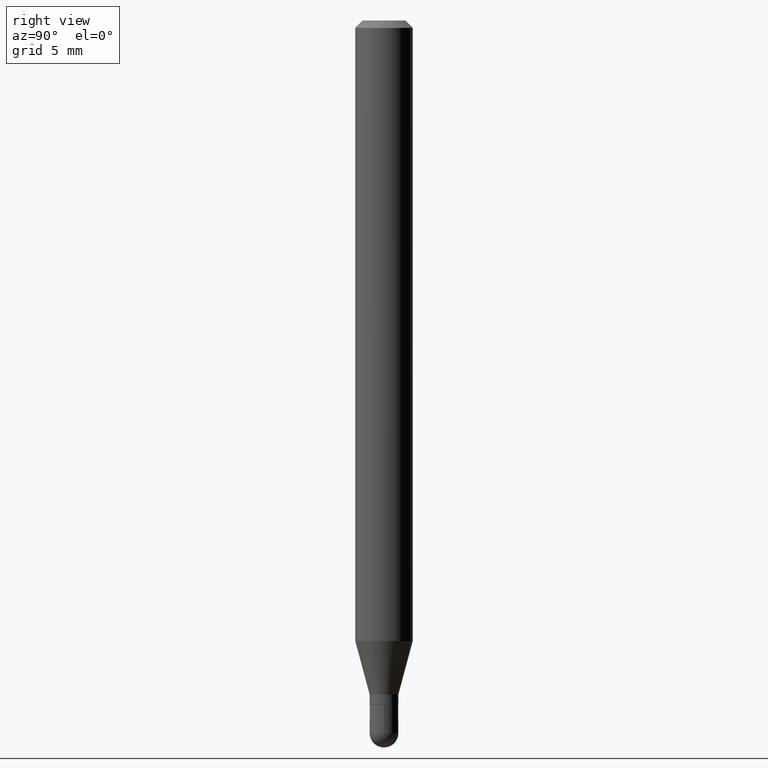
[diagram: clean part render]
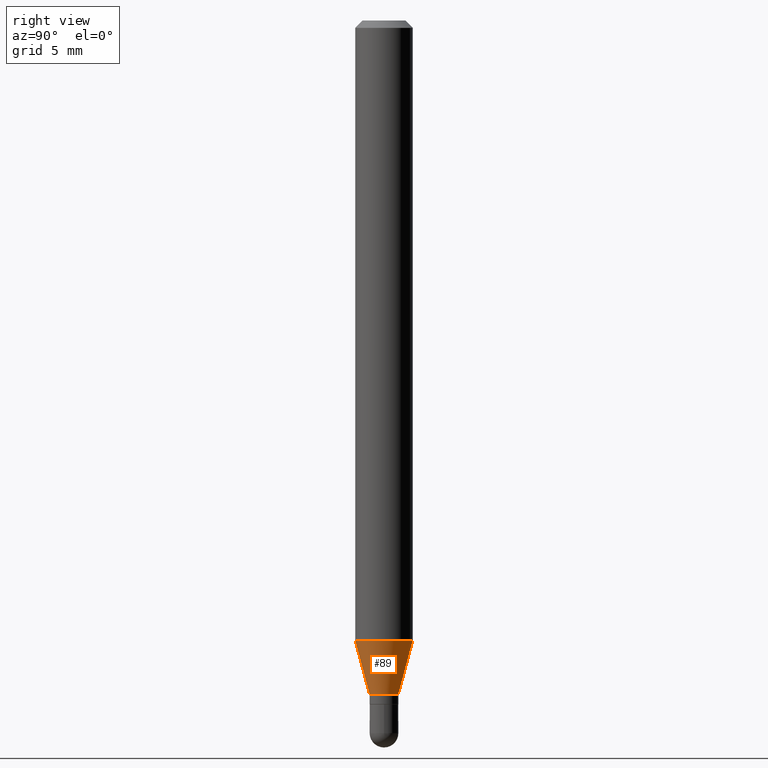
[diagram: same view with one face highlighted and labeled with its STEP entity id]
A machine part, right view. The second image highlights one B-rep face of the part: STEP entity #89.
In plain terms, the highlighted conical surface has half-angle 15 deg.
Its self-contained STEP definition (entity closure, byte-faithful):
#2 = DIRECTION ( 'NONE',  ( -2.445527102149587346E-29, 3.491397855704051540E-15, 1.000000000000000000 ) ) ;
#9 = DIRECTION ( 'NONE',  ( -6.982962677686265922E-15, -1.000000000000000000, 0.000000000000000000 ) ) ;
#31 = EDGE_LOOP ( 'NONE', ( #157, #188, #455, #152 ) ) ;
#38 = CARTESIAN_POINT ( 'NONE',  ( 3.392190643391691746E-29, -4.842917965647089767E-15, -1.387099999999999778 ) ) ;
#45 = CARTESIAN_POINT ( 'NONE',  ( -2.063465471255947033E-16, -0.02955000000000476690, -1.387099999999999778 ) ) ;
#58 = AXIS2_PLACEMENT_3D ( 'NONE', #38, #431, #9 ) ;
#64 = FACE_OUTER_BOUND ( 'NONE', #31, .T. ) ;
#79 = DIRECTION ( 'NONE',  ( 1.839019923739602682E-15, 0.2588190451025252914, 0.9659258262890670910 ) ) ;
#81 = VECTOR ( 'NONE', #210, 39.37007874015748854 ) ;
#89 = ADVANCED_FACE ( 'NONE', ( #64 ), #258, .T. ) ;
#103 = VECTOR ( 'NONE', #79, 39.37007874015748143 ) ;
#124 = CIRCLE ( 'NONE', #151, 0.05904999999999999832 ) ;
#137 = LINE ( 'NONE', #45, #81 ) ;
#138 = VERTEX_POINT ( 'NONE', #356 ) ;
#151 = AXIS2_PLACEMENT_3D ( 'NONE', #349, #2, #235 ) ;
#152 = ORIENTED_EDGE ( 'NONE', *, *, #474, .F. ) ;
#157 = ORIENTED_EDGE ( 'NONE', *, *, #418, .T. ) ;
#187 = CARTESIAN_POINT ( 'NONE',  ( 3.392190643391691746E-29, -4.842917965647089767E-15, -1.387099999999999778 ) ) ;
#188 = ORIENTED_EDGE ( 'NONE', *, *, #436, .T. ) ;
#202 = VERTEX_POINT ( 'NONE', #291 ) ;
#210 = DIRECTION ( 'NONE',  ( -1.807323732225332900E-15, -0.2588190451025185190, 0.9659258262890689783 ) ) ;
#214 = DIRECTION ( 'NONE',  ( -2.445527102149587346E-29, 3.491397855704051540E-15, 1.000000000000000000 ) ) ;
#235 = DIRECTION ( 'NONE',  ( -6.982962677686265922E-15, -1.000000000000000000, 4.626330217890369336E-15 ) ) ;
#238 = CARTESIAN_POINT ( 'NONE',  ( -2.063465471255947033E-16, -0.02955000000000476690, -1.387099999999999778 ) ) ;
#258 = CONICAL_SURFACE ( 'NONE', #481, 0.02954999999999992355, 0.2617993877991506291 ) ;
#267 = LINE ( 'NONE', #434, #103 ) ;
#273 = CARTESIAN_POINT ( 'NONE',  ( 3.147704319417567192E-16, 0.02954999999999508020, -1.387099999999999778 ) ) ;
#291 = CARTESIAN_POINT ( 'NONE',  ( -4.123439461173429220E-16, -0.05905000000000448085, -1.277004501176717932 ) ) ;
#299 = DIRECTION ( 'NONE',  ( -6.982962677686265922E-15, -1.000000000000000000, 0.000000000000000000 ) ) ;
#319 = VERTEX_POINT ( 'NONE', #238 ) ;
#337 = VERTEX_POINT ( 'NONE', #273 ) ;
#349 = CARTESIAN_POINT ( 'NONE',  ( 3.122949117194679067E-29, -4.458530777132816558E-15, -1.277004501176718154 ) ) ;
#356 = CARTESIAN_POINT ( 'NONE',  ( 4.195754854663701106E-16, 0.05904999999999551580, -1.277004501176718376 ) ) ;
#397 = EDGE_CURVE ( 'NONE', #202, #138, #124, .T. ) ;
#418 = EDGE_CURVE ( 'NONE', #319, #337, #440, .T. ) ;
#431 = DIRECTION ( 'NONE',  ( -2.445527102149587346E-29, 3.491397855704051540E-15, 1.000000000000000000 ) ) ;
#434 = CARTESIAN_POINT ( 'NONE',  ( 2.099653784171429334E-16, 0.02954999999999508020, -1.387099999999999778 ) ) ;
#436 = EDGE_CURVE ( 'NONE', #337, #138, #267, .T. ) ;
#440 = CIRCLE ( 'NONE', #58, 0.02954999999999992355 ) ;
#455 = ORIENTED_EDGE ( 'NONE', *, *, #397, .F. ) ;
#474 = EDGE_CURVE ( 'NONE', #319, #202, #137, .T. ) ;
#481 = AXIS2_PLACEMENT_3D ( 'NONE', #187, #214, #299 ) ;